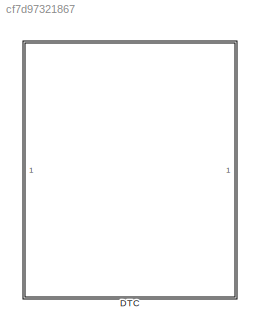
MODEL slx_cf7d97321867
KIND model
CONFIG AbsTol = auto
CONFIG EnableMultiTasking = off
CONFIG FixedStep = auto
CONFIG MaxStep = auto
CONFIG MinStep = auto
CONFIG RelTol = 1e-3
CONFIG SampleTimeConstraint = Unconstrained
CONFIG Solver = VariableStepAuto
CONFIG SolverName = VariableStepAuto
CONFIG StartTime = 0.0
CONFIG StopTime = 10
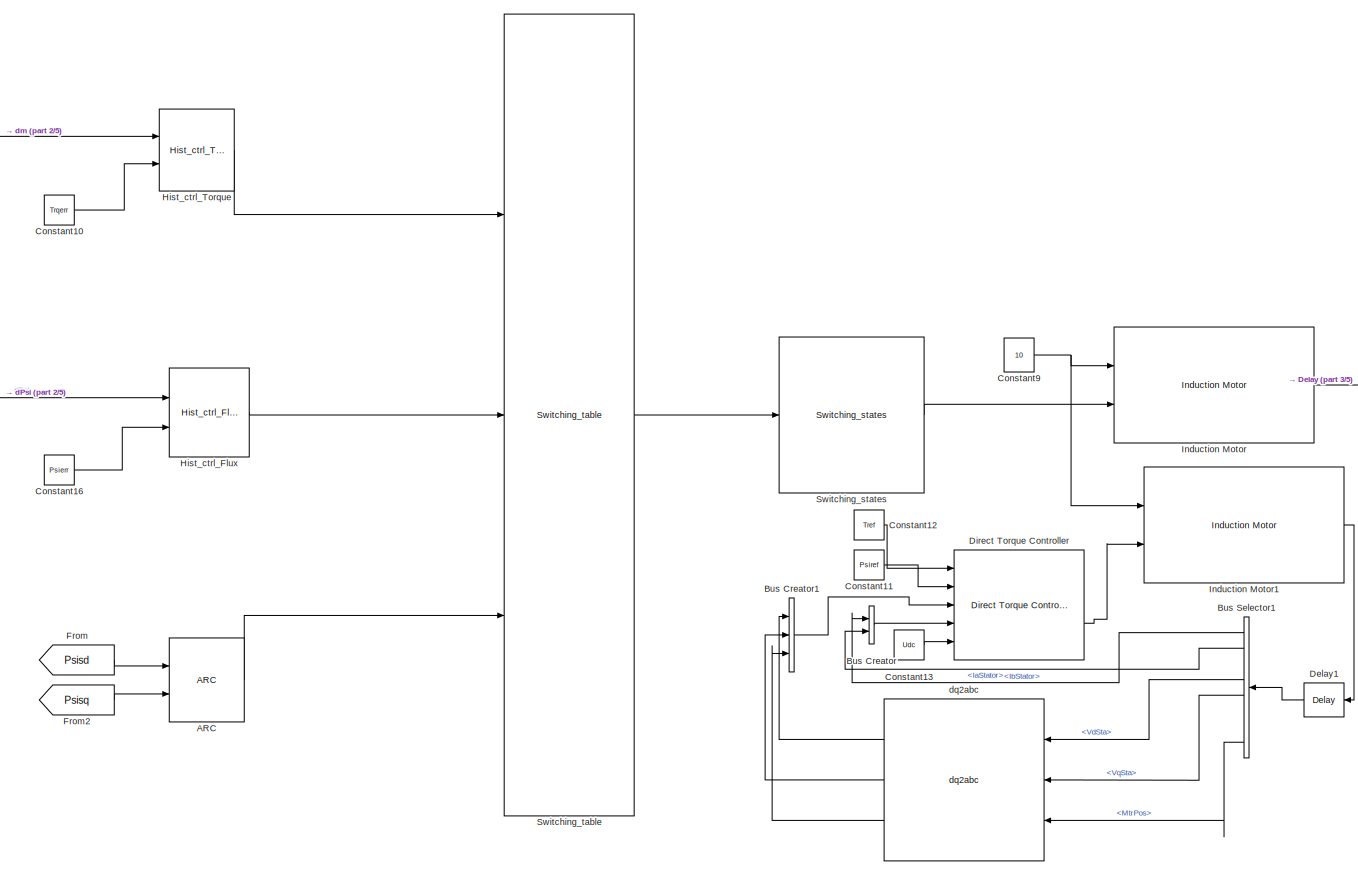
[diagram: DTC - part 1/5, top right region]
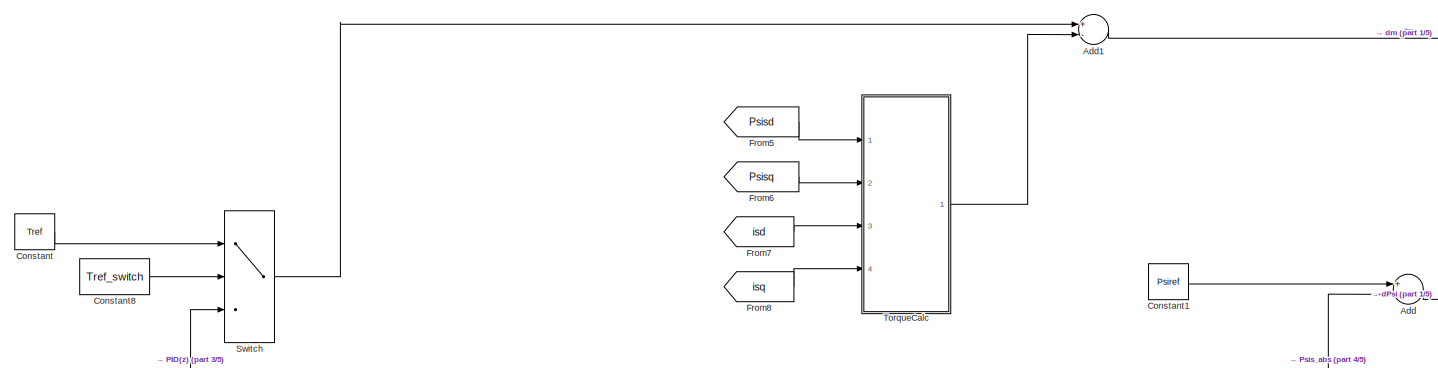
[diagram: DTC - part 2/5, top center region]
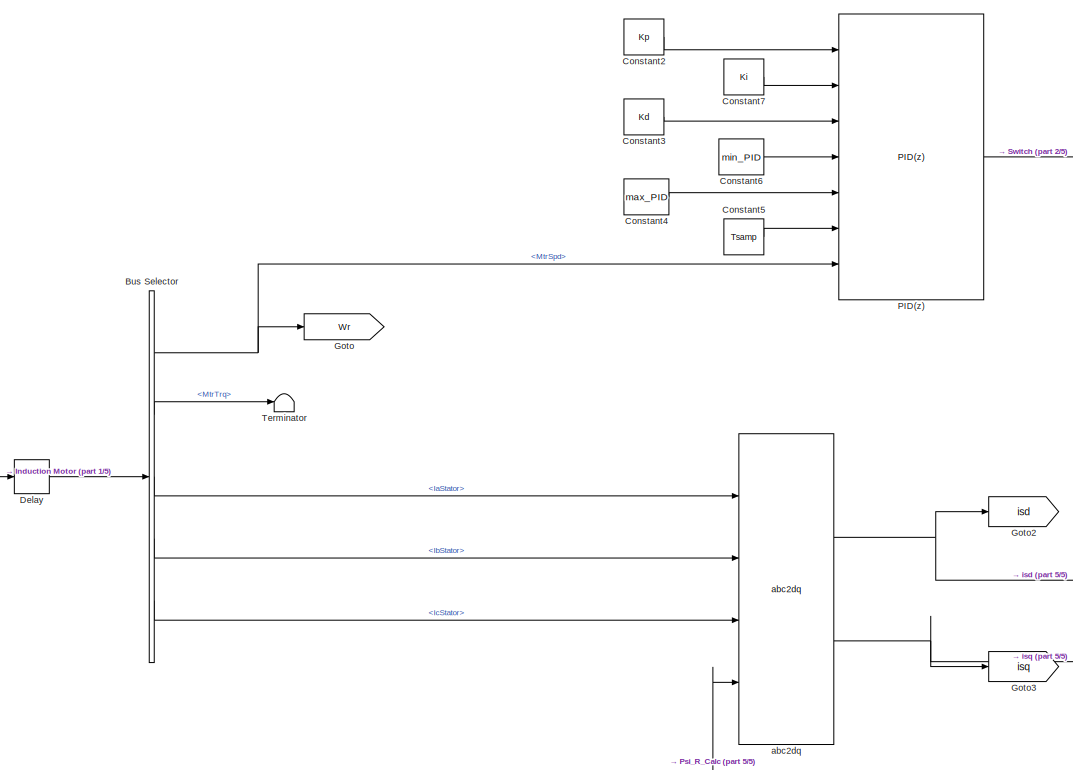
[diagram: DTC - part 3/5, middle left region]
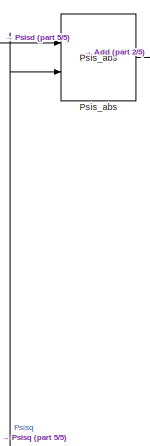
[diagram: DTC - part 4/5, central region]
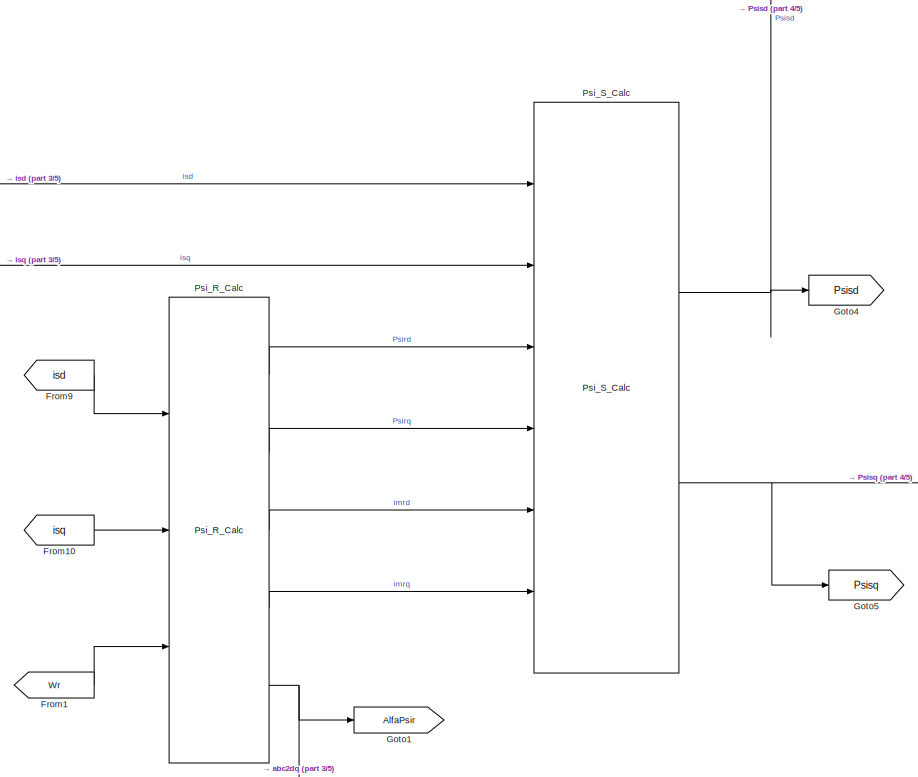
[diagram: DTC - part 5/5, bottom center region]
BLOCK [SubSystem] DTC
  Ports = []
  RequestExecContextInheritance = off
  Variant = off
BLOCK [Reference] DTC/ARC  REF=controller_lib/ARC  (lib defined in mdl_7825784cbb12, mdl_a3d5ea557988, +4 more)
  Ports = [2, 1]
  SourceBlock = controller_lib/ARC
  SourceType = SubSystem
BLOCK [Sum] DTC/Add
  InputSameDT = off
  Inputs = +-
  OutDataTypeStr = Inherit: Inherit via internal rule
  Ports = [2, 1]
  SaturateOnIntegerOverflow = off
BLOCK [Sum] DTC/Add1
  InputSameDT = off
  Inputs = +-
  OutDataTypeStr = Inherit: Inherit via internal rule
  Ports = [2, 1]
  SaturateOnIntegerOverflow = off
BLOCK [BusCreator] DTC/Bus Creator
  Commented = on
  DisplayOption = bar
  InheritFromInputs = on
  Inputs = 2
  Ports = [2, 1]
BLOCK [BusCreator] DTC/Bus Creator1
  Commented = on
  DisplayOption = bar
  InheritFromInputs = on
  Inputs = 3
  Ports = [3, 1]
BLOCK [BusSelector] DTC/Bus Selector
  OutputAsBus = off
  OutputSignals = MtrSpd,MtrTrq,IaStator,IbStator,IcStator
  Ports = [1, 5]
BLOCK [BusSelector] DTC/Bus Selector1
  Commented = on
  OutputAsBus = off
  OutputSignals = IaStator,IbStator,IcStator,VdSta,VqSta,MtrSpd,MtrTrq,MtrPos
  Ports = [1, 8]
BLOCK [Constant] DTC/Constant
  Value = Tref
BLOCK [Constant] DTC/Constant1
  Value = Psiref
BLOCK [Constant] DTC/Constant10
  Value = Trqerr
BLOCK [Constant] DTC/Constant11
  Commented = on
  Value = Psiref
BLOCK [Constant] DTC/Constant12
  Commented = on
  Value = Tref
BLOCK [Constant] DTC/Constant13
  Commented = on
  Value = Udc
BLOCK [Constant] DTC/Constant16
  Value = Psierr
BLOCK [Constant] DTC/Constant2
  Value = Kp
BLOCK [Constant] DTC/Constant3
  Value = Kd
BLOCK [Constant] DTC/Constant4
  Value = max_PID
BLOCK [Constant] DTC/Constant5
  Value = Tsamp
BLOCK [Constant] DTC/Constant6
  Value = min_PID
BLOCK [Constant] DTC/Constant7
  Value = Ki
BLOCK [Constant] DTC/Constant8
  Value = Tref_switch
BLOCK [Constant] DTC/Constant9
  Value = 10
  VectorParams1D = off
BLOCK [Delay] DTC/Delay
  DelayLength = 1
  InputPortMap = u0
  Ports = [1, 1]
BLOCK [Delay] DTC/Delay1
  Commented = on
  DelayLength = 1
  InputPortMap = u0
  Ports = [1, 1]
BLOCK [Reference] DTC/Direct Torque Controller  REF=electricdrivelib/Fundamental Drive Blocks/Direct Torque Controller
  Commented = on
  Ports = [5, 2]
  SourceBlock = electricdrivelib/Fundamental Drive Blocks/Direct Torque Controller
  SourceProductBaseCode = PS
  SourceProductName = Simscape Power Systems
  SourceType = Direct Torque Controller
BLOCK [From] DTC/From
  GotoTag = Psisd
BLOCK [From] DTC/From1
  GotoTag = Wr
BLOCK [From] DTC/From10
  GotoTag = isq
BLOCK [From] DTC/From2
  GotoTag = Psisq
BLOCK [From] DTC/From5
  GotoTag = Psisd
BLOCK [From] DTC/From6
  GotoTag = Psisq
BLOCK [From] DTC/From7
  GotoTag = isd
BLOCK [From] DTC/From8
  GotoTag = isq
BLOCK [From] DTC/From9
  GotoTag = isd
BLOCK [Goto] DTC/Goto
  GotoTag = Wr
BLOCK [Goto] DTC/Goto1
  GotoTag = AlfaPsir
BLOCK [Goto] DTC/Goto2
  GotoTag = isd
BLOCK [Goto] DTC/Goto3
  GotoTag = isq
BLOCK [Goto] DTC/Goto4
  GotoTag = Psisd
BLOCK [Goto] DTC/Goto5
  GotoTag = Psisq
BLOCK [Reference] DTC/Hist_ctrl_Flux  REF=controller_lib/Hist_ctrl_Flux  (lib defined in mdl_7825784cbb12, mdl_a3d5ea557988, +4 more)
  Ports = [2, 1]
  SourceBlock = controller_lib/Hist_ctrl_Flux
  SourceType = SubSystem
BLOCK [Reference] DTC/Hist_ctrl_Torque  REF=controller_lib/Hist_ctrl_Torque  (lib defined in mdl_7825784cbb12, mdl_a3d5ea557988, +4 more)
  Ports = [2, 1]
  SourceBlock = controller_lib/Hist_ctrl_Torque
  SourceType = SubSystem
BLOCK [Reference] DTC/Induction Motor  REF=autolibim/Induction Motor
  Ports = [2, 1]
  SourceBlock = autolibim/Induction Motor
  SourceProductBaseCode = PW
  SourceProductName = Powertrain Blockset
  SourceType = Induction Motor
BLOCK [Reference] DTC/Induction Motor1  REF=autolibim/Induction Motor
  Commented = on
  Ports = [2, 1]
  SourceBlock = autolibim/Induction Motor
  SourceProductBaseCode = PW
  SourceProductName = Powertrain Blockset
  SourceType = Induction Motor
BLOCK [Reference] DTC/PID(z)  REF=controller_lib/PID(z)  (lib defined in mdl_7825784cbb12, mdl_a3d5ea557988, +4 more)
  Ports = [7, 1]
  SourceBlock = controller_lib/PID(z)
  SourceType = SubSystem
BLOCK [Reference] DTC/Psi_R_Calc  REF=misc_lib/Psi_R_Calc  (lib defined in slx_37dba49c2063, slx_c26dee3cf014)
  Ports = [3, 5]
  SourceBlock = misc_lib/Psi_R_Calc
  SourceType = SubSystem
BLOCK [Reference] DTC/Psi_S_Calc  REF=misc_lib/Psi_S_Calc  (lib defined in slx_37dba49c2063, slx_c26dee3cf014)
  Ports = [6, 2]
  SourceBlock = misc_lib/Psi_S_Calc
  SourceType = SubSystem
BLOCK [Reference] DTC/Psis_abs  REF=misc_lib/Psis_abs  (lib defined in slx_37dba49c2063, slx_c26dee3cf014)
  Ports = [2, 1]
  SourceBlock = misc_lib/Psis_abs
  SourceType = SubSystem
BLOCK [Switch] DTC/Switch
  Criteria = u2 > Threshold
  InputSameDT = off
  SaturateOnIntegerOverflow = off
BLOCK [Reference] DTC/Switching_states   REF=misc_lib/Switching_states  (lib defined in slx_37dba49c2063, slx_c26dee3cf014)

  Ports = [1, 1]
  SourceBlock = misc_lib/Switching_states
  SourceType = SubSystem
BLOCK [Reference] DTC/Switching_table  REF=misc_lib/Switching_table  (lib defined in slx_37dba49c2063, slx_c26dee3cf014)
  Ports = [3, 1]
  SourceBlock = misc_lib/Switching_table
  SourceType = SubSystem
BLOCK [Terminator] DTC/Terminator
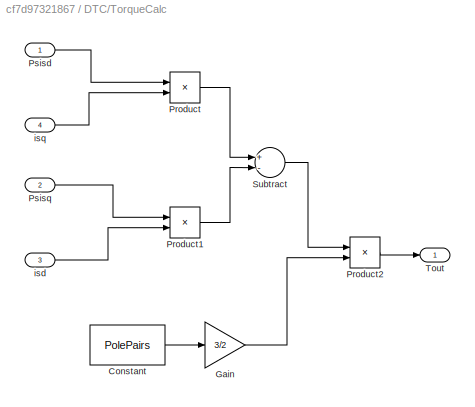
BLOCK [SubSystem] DTC/TorqueCalc
  Ports = [4, 1]
  RequestExecContextInheritance = off
  Variant = off
BLOCK [Constant] DTC/TorqueCalc/Constant
  Value = PolePairs
BLOCK [Gain] DTC/TorqueCalc/Gain
  Gain = 3/2
  OutDataTypeStr = Inherit: Inherit via internal rule
  ParamDataTypeStr = Inherit: Inherit via internal rule
  SaturateOnIntegerOverflow = off
BLOCK [Product] DTC/TorqueCalc/Product
  InputSameDT = off
  OutDataTypeStr = Inherit: Inherit via internal rule
  Ports = [2, 1]
  RndMeth = Floor
  SaturateOnIntegerOverflow = off
BLOCK [Product] DTC/TorqueCalc/Product1
  InputSameDT = off
  OutDataTypeStr = Inherit: Inherit via internal rule
  Ports = [2, 1]
  RndMeth = Floor
  SaturateOnIntegerOverflow = off
BLOCK [Product] DTC/TorqueCalc/Product2
  InputSameDT = off
  OutDataTypeStr = Inherit: Inherit via internal rule
  Ports = [2, 1]
  RndMeth = Floor
  SaturateOnIntegerOverflow = off
BLOCK [Inport] DTC/TorqueCalc/Psisd
  IconDisplay = Port number
BLOCK [Inport] DTC/TorqueCalc/Psisq
  IconDisplay = Port number
  Port = 2
BLOCK [Sum] DTC/TorqueCalc/Subtract
  InputSameDT = off
  Inputs = +-
  OutDataTypeStr = Inherit: Inherit via internal rule
  Ports = [2, 1]
  SaturateOnIntegerOverflow = off
BLOCK [Outport] DTC/TorqueCalc/Tout
  IconDisplay = Port number
BLOCK [Inport] DTC/TorqueCalc/isd
  IconDisplay = Port number
  Port = 3
BLOCK [Inport] DTC/TorqueCalc/isq
  IconDisplay = Port number
  Port = 4
BLOCK [Reference] DTC/abc2dq   REF=coordinate_transform_lib/abc2dq  (lib defined in slx_e95137733bb9)

  Ports = [4, 2]
  SourceBlock = coordinate_transform_lib/abc2dq
  SourceType = SubSystem
BLOCK [Reference] DTC/dq2abc  REF=coordinate_transform_lib/dq2abc  (lib defined in slx_e95137733bb9)
  Commented = on
  Ports = [3, 3]
  SourceBlock = coordinate_transform_lib/dq2abc
  SourceType = SubSystem
LINE DTC/ARC:1 -> DTC/Switching_table:3
LINE DTC/Add1:1 -> DTC/Hist_ctrl_Torque:1
LINE DTC/Add:1 -> DTC/Hist_ctrl_Flux:1
LINE DTC/Bus Creator1:1 -> DTC/Direct Torque Controller:3
LINE DTC/Bus Creator:1 -> DTC/Direct Torque Controller:4
LINE DTC/Bus Selector1:1 -> DTC/Bus Creator:1
LINE DTC/Bus Selector1:2 -> DTC/Bus Creator:2
LINE DTC/Bus Selector1:4 -> DTC/dq2abc:1
LINE DTC/Bus Selector1:5 -> DTC/dq2abc:2
LINE DTC/Bus Selector1:8 -> DTC/dq2abc:3
NET DTC/Bus Selector:1 -> DTC/Goto:1, DTC/PID(z):7
LINE DTC/Bus Selector:2 -> DTC/Terminator:1
LINE DTC/Bus Selector:3 -> DTC/abc2dq :1
LINE DTC/Bus Selector:4 -> DTC/abc2dq :2
LINE DTC/Bus Selector:5 -> DTC/abc2dq :3
LINE DTC/Constant10:1 -> DTC/Hist_ctrl_Torque:2
LINE DTC/Constant11:1 -> DTC/Direct Torque Controller:2
LINE DTC/Constant12:1 -> DTC/Direct Torque Controller:1
LINE DTC/Constant13:1 -> DTC/Direct Torque Controller:5
LINE DTC/Constant16:1 -> DTC/Hist_ctrl_Flux:2
LINE DTC/Constant1:1 -> DTC/Add:1
LINE DTC/Constant2:1 -> DTC/PID(z):1
LINE DTC/Constant3:1 -> DTC/PID(z):3
LINE DTC/Constant4:1 -> DTC/PID(z):5
LINE DTC/Constant5:1 -> DTC/PID(z):6
LINE DTC/Constant6:1 -> DTC/PID(z):4
LINE DTC/Constant7:1 -> DTC/PID(z):2
LINE DTC/Constant8:1 -> DTC/Switch:2
NET DTC/Constant9:1 -> DTC/Induction Motor1:1, DTC/Induction Motor:1
LINE DTC/Constant:1 -> DTC/Switch:1
LINE DTC/Delay1:1 -> DTC/Bus Selector1:1
LINE DTC/Delay:1 -> DTC/Bus Selector:1
LINE DTC/Direct Torque Controller:2 -> DTC/Induction Motor1:2
LINE DTC/From10:1 -> DTC/Psi_R_Calc:2
LINE DTC/From1:1 -> DTC/Psi_R_Calc:3
LINE DTC/From2:1 -> DTC/ARC:2
LINE DTC/From5:1 -> DTC/TorqueCalc:1
LINE DTC/From6:1 -> DTC/TorqueCalc:2
LINE DTC/From7:1 -> DTC/TorqueCalc:3
LINE DTC/From8:1 -> DTC/TorqueCalc:4
LINE DTC/From9:1 -> DTC/Psi_R_Calc:1
LINE DTC/From:1 -> DTC/ARC:1
LINE DTC/Hist_ctrl_Flux:1 -> DTC/Switching_table:2
LINE DTC/Hist_ctrl_Torque:1 -> DTC/Switching_table:1
LINE DTC/Induction Motor1:1 -> DTC/Delay1:1
LINE DTC/Induction Motor:1 -> DTC/Delay:1
LINE DTC/PID(z):1 -> DTC/Switch:3
LINE DTC/Psi_R_Calc:1 -> DTC/Psi_S_Calc:3
LINE DTC/Psi_R_Calc:2 -> DTC/Psi_S_Calc:4
LINE DTC/Psi_R_Calc:3 -> DTC/Psi_S_Calc:5
LINE DTC/Psi_R_Calc:4 -> DTC/Psi_S_Calc:6
NET DTC/Psi_R_Calc:5 -> DTC/Goto1:1, DTC/abc2dq :4
NET DTC/Psi_S_Calc:1 -> DTC/Goto4:1, DTC/Psis_abs:1
NET DTC/Psi_S_Calc:2 -> DTC/Goto5:1, DTC/Psis_abs:2
LINE DTC/Psis_abs:1 -> DTC/Add:2
LINE DTC/Switch:1 -> DTC/Add1:1
LINE DTC/Switching_states :1 -> DTC/Induction Motor:2
LINE DTC/Switching_table:1 -> DTC/Switching_states :1
LINE DTC/TorqueCalc/Constant:1 -> DTC/TorqueCalc/Gain:1
LINE DTC/TorqueCalc/Gain:1 -> DTC/TorqueCalc/Product2:2
LINE DTC/TorqueCalc/Product1:1 -> DTC/TorqueCalc/Subtract:2
LINE DTC/TorqueCalc/Product2:1 -> DTC/TorqueCalc/Tout:1
LINE DTC/TorqueCalc/Product:1 -> DTC/TorqueCalc/Subtract:1
LINE DTC/TorqueCalc/Psisd:1 -> DTC/TorqueCalc/Product:1
LINE DTC/TorqueCalc/Psisq:1 -> DTC/TorqueCalc/Product1:1
LINE DTC/TorqueCalc/Subtract:1 -> DTC/TorqueCalc/Product2:1
LINE DTC/TorqueCalc/isd:1 -> DTC/TorqueCalc/Product1:2
LINE DTC/TorqueCalc/isq:1 -> DTC/TorqueCalc/Product:2
LINE DTC/TorqueCalc:1 -> DTC/Add1:2
NET DTC/abc2dq :1 -> DTC/Goto2:1, DTC/Psi_S_Calc:1
NET DTC/abc2dq :2 -> DTC/Goto3:1, DTC/Psi_S_Calc:2
LINE DTC/dq2abc:1 -> DTC/Bus Creator1:1
LINE DTC/dq2abc:2 -> DTC/Bus Creator1:2
LINE DTC/dq2abc:3 -> DTC/Bus Creator1:3
note: NET lines group one-source signal fan-out (src -> all destinations, sorted); 1:1 wires keep LINE
